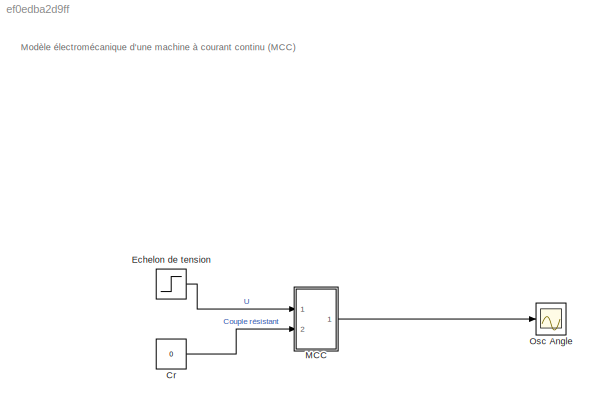
MODEL slx_ef0edba2d9ff
KIND model
CONFIG AbsTol = auto
CONFIG EnableMultiTasking = off
CONFIG FixedStep = auto
CONFIG InitFcn = TP1_MCC_cst
CONFIG MaxStep = auto
CONFIG MinStep = auto
CONFIG RelTol = 1e-3
CONFIG SampleTimeConstraint = Unconstrained
CONFIG Solver = ode15s
CONFIG SolverName = ode15s
CONFIG StartTime = 0.0
CONFIG StopTime = 0.2
BLOCK [Constant] Cr
  Value = 0
BLOCK [Step] Echelon de tension
  After = 12
  SampleTime = 0
  Time = 0
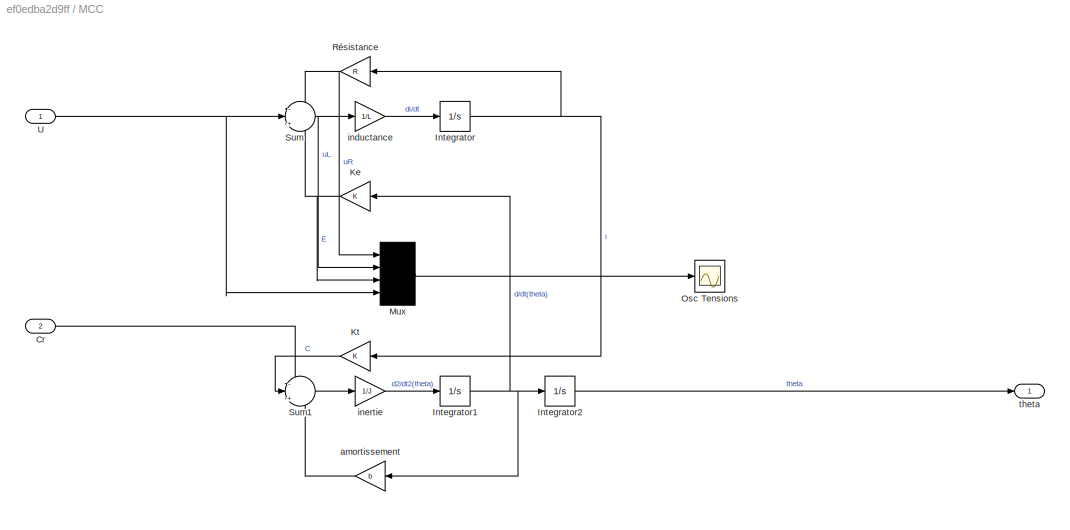
BLOCK [SubSystem] MCC
  Ports = [2, 1]
  RequestExecContextInheritance = off
  Variant = off
BLOCK [Inport] MCC/Cr
  IconDisplay = Port number
  Port = 2
BLOCK [Integrator] MCC/Integrator
  Ports = [1, 1]
BLOCK [Integrator] MCC/Integrator1
  Ports = [1, 1]
BLOCK [Integrator] MCC/Integrator2
  Ports = [1, 1]
BLOCK [Gain] MCC/Ke
  Gain = K
  OutDataTypeStr = Inherit: Inherit via internal rule
  ParamDataTypeStr = Inherit: Inherit via internal rule
  SaturateOnIntegerOverflow = off
BLOCK [Gain] MCC/Kt
  Gain = K
  OutDataTypeStr = Inherit: Inherit via internal rule
  ParamDataTypeStr = Inherit: Inherit via internal rule
  SaturateOnIntegerOverflow = off
BLOCK [Mux] MCC/Mux
  DisplayOption = signals
  Ports = [4, 1]
BLOCK [Scope] MCC/Osc Tensions
  NumInputPorts = 1
  Ports = [1]
  ScopeSpecificationString = Simulink.scopes.TimeScopeBlockCfg('CurrentConfiguration', extmgr.ConfigurationSet(extmgr.Configuration('Core','General UI',true),extmgr.Configuration('Core','Source UI',true),extmgr.Configuration('Sources','WiredSimulink',true,'DataLoggingVariableName','ScopeData1'),extmgr.Configuration('Visuals','Time Domain',true,'SerializedDisplays',{struct('MinYLimReal','-1.50121','MaxYLimReal','12.24002','YLa...<+1477ch>
BLOCK [Gain] MCC/Résistance
  Gain = R
  OutDataTypeStr = Inherit: Inherit via internal rule
  ParamDataTypeStr = Inherit: Inherit via internal rule
  SaturateOnIntegerOverflow = off
BLOCK [Sum] MCC/Sum
  IconShape = round
  InputSameDT = off
  Inputs = -|+|-
  OutDataTypeStr = Inherit: Inherit via internal rule
  Ports = [3, 1]
  SaturateOnIntegerOverflow = off
BLOCK [Sum] MCC/Sum1
  IconShape = round
  InputSameDT = off
  Inputs = -|+|-
  OutDataTypeStr = Inherit: Inherit via internal rule
  Ports = [3, 1]
  SaturateOnIntegerOverflow = off
BLOCK [Inport] MCC/U
  IconDisplay = Port number
BLOCK [Gain] MCC/amortissement
  Gain = b
  OutDataTypeStr = Inherit: Inherit via internal rule
  ParamDataTypeStr = Inherit: Inherit via internal rule
  SaturateOnIntegerOverflow = off
BLOCK [Gain] MCC/inductance
  Gain = 1/L
  OutDataTypeStr = Inherit: Inherit via internal rule
  ParamDataTypeStr = Inherit: Inherit via internal rule
  SaturateOnIntegerOverflow = off
BLOCK [Gain] MCC/inertie
  Gain = 1/J
  OutDataTypeStr = Inherit: Inherit via internal rule
  ParamDataTypeStr = Inherit: Inherit via internal rule
  SaturateOnIntegerOverflow = off
BLOCK [Outport] MCC/theta
  IconDisplay = Port number
BLOCK [Scope] Osc Angle
  NumInputPorts = 1
  Ports = [1]
  ScopeSpecificationString = Simulink.scopes.TimeScopeBlockCfg('CurrentConfiguration', extmgr.ConfigurationSet(extmgr.Configuration('Core','General UI',true),extmgr.Configuration('Core','Source UI',true),extmgr.Configuration('Sources','WiredSimulink',true),extmgr.Configuration('Visuals','Time Domain',true,'SerializedDisplays',{struct('MinYLimReal','-9.84063','MaxYLimReal','88.56564','YLabelReal','','MinYLimMag','0.00000','Max...<+1383ch>
ANNOTATION (root): Modèle électromécanique d'une machine à courant continu (MCC)
LINE Cr:1 -> MCC:2
LINE Echelon de tension:1 -> MCC:1
LINE MCC/Cr:1 -> MCC/Sum1:1
NET MCC/Integrator1:1 -> MCC/Integrator2:1, MCC/Ke:1, MCC/amortissement:1
LINE MCC/Integrator2:1 -> MCC/theta:1
NET MCC/Integrator:1 -> MCC/Kt:1, MCC/Résistance:1
NET MCC/Ke:1 -> MCC/Mux:3, MCC/Sum:3
LINE MCC/Kt:1 -> MCC/Sum1:2
LINE MCC/Mux:1 -> MCC/Osc Tensions:1
NET MCC/Résistance:1 -> MCC/Mux:1, MCC/Sum:1
LINE MCC/Sum1:1 -> MCC/inertie:1
NET MCC/Sum:1 -> MCC/Mux:2, MCC/inductance:1
NET MCC/U:1 -> MCC/Mux:4, MCC/Sum:2
LINE MCC/amortissement:1 -> MCC/Sum1:3
LINE MCC/inductance:1 -> MCC/Integrator:1
LINE MCC/inertie:1 -> MCC/Integrator1:1
LINE MCC:1 -> Osc Angle:1
note: NET lines group one-source signal fan-out (src -> all destinations, sorted); 1:1 wires keep LINE
